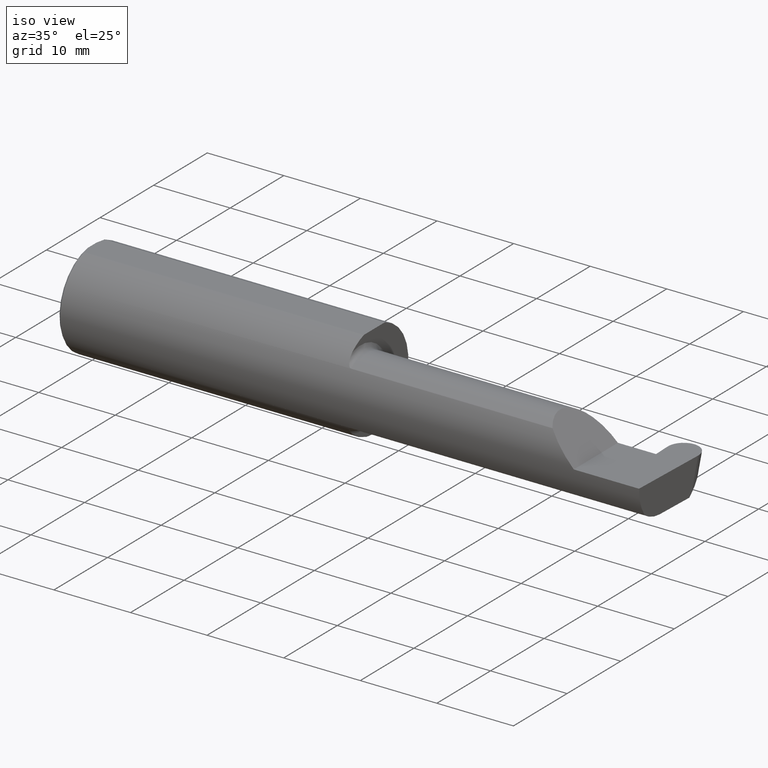
[diagram: clean part render]
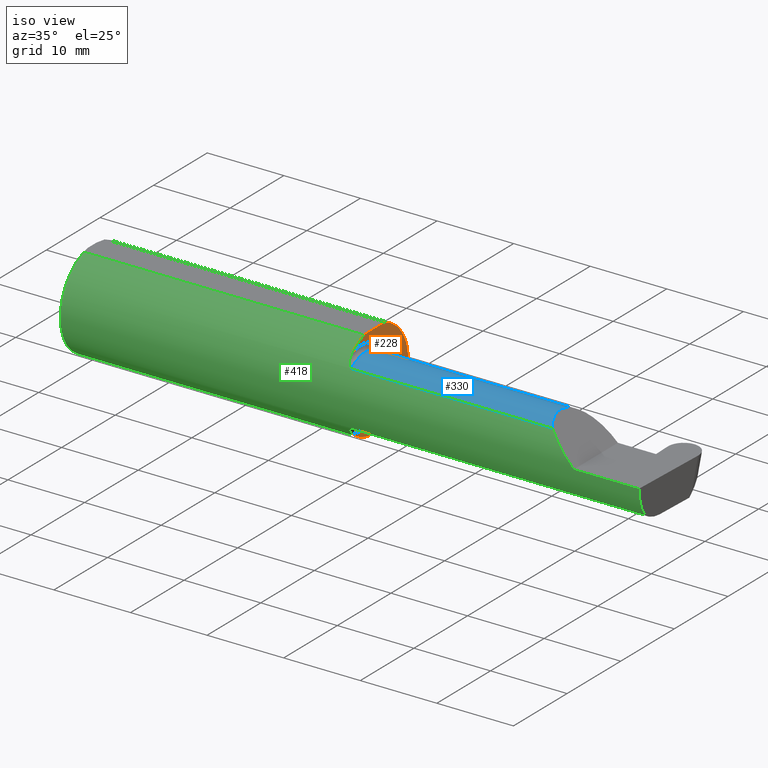
[diagram: same view with three faces highlighted in distinct colors, each labeled with its STEP entity id]
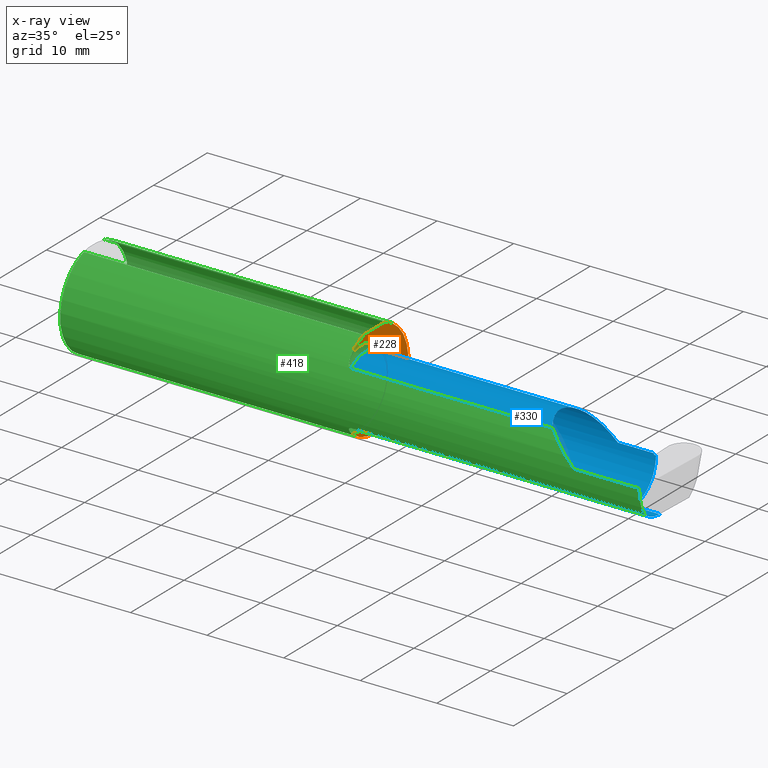
[diagram: x-ray of the same camera — body ghosted, the three highlighted faces saturated]
A machine part, iso view with three faces highlighted in distinct colors.
The next image is the same camera in x-ray (body ghosted, the three faces saturated) — at least one of them is partly hidden behind the body in this view.
Their STEP definitions:

[orange] entity #228 — the highlighted planar face has unit normal (1, 0, 0).
#15 = CARTESIAN_POINT ( 'NONE',  ( 1.450000000000000178, 0.07650098038587520299, 0.2378499999999998671 ) ) ;
#19 = DIRECTION ( 'NONE',  ( 1.000000000000000000, 6.129676535826869480E-17, 0.000000000000000000 ) ) ;
#21 = CARTESIAN_POINT ( 'NONE',  ( 1.450000000000000178, -0.07650098038587527238, 0.2378499999999998671 ) ) ;
#39 = EDGE_CURVE ( 'NONE', #113, #677, #88, .T. ) ;
#56 = AXIS2_PLACEMENT_3D ( 'NONE', #667, #220, #407 ) ;
#71 = EDGE_CURVE ( 'NONE', #565, #113, #449, .T. ) ;
#77 = EDGE_CURVE ( 'NONE', #677, #178, #312, .T. ) ;
#87 = ORIENTED_EDGE ( 'NONE', *, *, #39, .T. ) ;
#88 = CIRCLE ( 'NONE', #627, 0.1999999999999999556 ) ;
#94 = CARTESIAN_POINT ( 'NONE',  ( 1.450000000000000178, -0.1616050818046604332, -0.1905487340154980169 ) ) ;
#108 = DIRECTION ( 'NONE',  ( 0.000000000000000000, -1.000000000000000000, 0.000000000000000000 ) ) ;
#113 = VERTEX_POINT ( 'NONE', #279 ) ;
#144 = DIRECTION ( 'NONE',  ( -6.129676535826869480E-17, 1.000000000000000000, 0.000000000000000000 ) ) ;
#148 = ORIENTED_EDGE ( 'NONE', *, *, #195, .F. ) ;
#175 = ORIENTED_EDGE ( 'NONE', *, *, #71, .T. ) ;
#178 = VERTEX_POINT ( 'NONE', #15 ) ;
#195 = EDGE_CURVE ( 'NONE', #565, #178, #287, .T. ) ;
#220 = DIRECTION ( 'NONE',  ( 1.000000000000000000, 6.129676535826869480E-17, 0.000000000000000000 ) ) ;
#228 = ADVANCED_FACE ( 'NONE', ( #526 ), #239, .T. ) ;
#239 = PLANE ( 'NONE',  #289 ) ;
#279 = CARTESIAN_POINT ( 'NONE',  ( 1.450000000000000178, -0.1616050818046604332, 0.1905487340154980169 ) ) ;
#287 = LINE ( 'NONE', #516, #517 ) ;
#289 = AXIS2_PLACEMENT_3D ( 'NONE', #571, #697, #144 ) ;
#297 = DIRECTION ( 'NONE',  ( -6.129676535826869480E-17, 1.000000000000000000, 0.000000000000000000 ) ) ;
#301 = EDGE_LOOP ( 'NONE', ( #655, #148, #175, #87 ) ) ;
#312 = CIRCLE ( 'NONE', #56, 0.2498499999999999888 ) ;
#384 = CARTESIAN_POINT ( 'NONE',  ( 1.450000000000000178, -0.1008500000000001062, 0.000000000000000000 ) ) ;
#400 = DIRECTION ( 'NONE',  ( 0.000000000000000000, 1.000000000000000000, 0.000000000000000000 ) ) ;
#407 = DIRECTION ( 'NONE',  ( 0.000000000000000000, 1.000000000000000000, 0.000000000000000000 ) ) ;
#449 = CIRCLE ( 'NONE', #605, 0.2498499999999999888 ) ;
#460 = CARTESIAN_POINT ( 'NONE',  ( 1.450000000000000178, 0.000000000000000000, 0.000000000000000000 ) ) ;
#490 = DIRECTION ( 'NONE',  ( -1.000000000000000000, -6.129676535826869480E-17, -0.000000000000000000 ) ) ;
#516 = CARTESIAN_POINT ( 'NONE',  ( 1.450000000000000178, 0.2498499999999997390, 0.2378499999999998671 ) ) ;
#517 = VECTOR ( 'NONE', #297, 39.37007874015748143 ) ;
#526 = FACE_OUTER_BOUND ( 'NONE', #301, .T. ) ;
#565 = VERTEX_POINT ( 'NONE', #21 ) ;
#571 = CARTESIAN_POINT ( 'NONE',  ( 1.450000000000000178, 0.2498499999999998500, 0.000000000000000000 ) ) ;
#605 = AXIS2_PLACEMENT_3D ( 'NONE', #460, #19, #400 ) ;
#627 = AXIS2_PLACEMENT_3D ( 'NONE', #384, #490, #108 ) ;
#655 = ORIENTED_EDGE ( 'NONE', *, *, #77, .T. ) ;
#667 = CARTESIAN_POINT ( 'NONE',  ( 1.450000000000000178, 0.000000000000000000, 0.000000000000000000 ) ) ;
#677 = VERTEX_POINT ( 'NONE', #94 ) ;
#697 = DIRECTION ( 'NONE',  ( 1.000000000000000000, 6.129676535826869480E-17, 0.000000000000000000 ) ) ;

[blue] entity #330 — the highlighted cylindrical surface (partial cylindrical patch) has radius 4.445 mm, axis along (-1, -0, -0).
#7 = CARTESIAN_POINT ( 'NONE',  ( 2.849201506090199398, -0.1008500000000000368, -0.1750000000000000444 ) ) ;
#14 = DIRECTION ( 'NONE',  ( -1.000000000000000000, -0.000000000000000000, -0.000000000000000000 ) ) ;
#20 = VERTEX_POINT ( 'NONE', #7 ) ;
#29 = DIRECTION ( 'NONE',  ( 0.000000000000000000, -1.000000000000000000, 0.000000000000000000 ) ) ;
#40 = CARTESIAN_POINT ( 'NONE',  ( 2.847896006995015661, 0.07056399972053264968, -0.1057442486376091867 ) ) ;
#44 = CARTESIAN_POINT ( 'NONE',  ( 2.158868309999999902, -0.2080850024789289432, 0.1382955322609668858 ) ) ;
#45 = CARTESIAN_POINT ( 'NONE',  ( 2.834942811380418259, 0.07414999999999977165, 0.000000000000000000 ) ) ;
#46 = VERTEX_POINT ( 'NONE', #323 ) ;
#49 = CARTESIAN_POINT ( 'NONE',  ( 1.474999999999999867, -0.1008500000000001062, 0.000000000000000000 ) ) ;
#60 = LINE ( 'NONE', #653, #425 ) ;
#72 = CARTESIAN_POINT ( 'NONE',  ( 2.984481223124517690, -0.2080850024789288599, -0.1382955322609668858 ) ) ;
#74 = CARTESIAN_POINT ( 'NONE',  ( 3.402190948718818664, -0.1008499999999999674, -0.1750000000000000722 ) ) ;
#89 = CARTESIAN_POINT ( 'NONE',  ( 2.834836206108759527, 0.07404339472834127467, -0.006107411922952336175 ) ) ;
#101 =( BOUNDED_CURVE ( )  B_SPLINE_CURVE ( 3, ( #574, #480, #199, #528 ),
 .UNSPECIFIED., .F., .T. ) 
 B_SPLINE_CURVE_WITH_KNOTS ( ( 4, 4 ),
 ( 0.4474640105399725343, 1.107026853503877861 ),
 .UNSPECIFIED. ) 
 CURVE ( )  GEOMETRIC_REPRESENTATION_ITEM ( )  RATIONAL_B_SPLINE_CURVE ( ( 1.000000000000000000, 0.9640754331822831702, 0.9640754331822831702, 1.000000000000000000 ) ) 
 REPRESENTATION_ITEM ( '' )  );
#107 = CARTESIAN_POINT ( 'NONE',  ( 1.474999999999999867, -0.2080850024789288599, -0.1382955322609669135 ) ) ;
#133 = LINE ( 'NONE', #457, #136 ) ;
#134 = VERTEX_POINT ( 'NONE', #502 ) ;
#135 = EDGE_CURVE ( 'NONE', #194, #577, #133, .T. ) ;
#136 = VECTOR ( 'NONE', #284, 39.37007874015748143 ) ;
#151 = ORIENTED_EDGE ( 'NONE', *, *, #639, .T. ) ;
#160 = CARTESIAN_POINT ( 'NONE',  ( 2.511704467739032332, -0.2080850024789289432, 0.1382955322609668858 ) ) ;
#162 = EDGE_CURVE ( 'NONE', #562, #454, #231, .T. ) ;
#185 = CARTESIAN_POINT ( 'NONE',  ( 2.409263745716142768, -0.07597241004310682777, 0.2407362542838554220 ) ) ;
#187 = ORIENTED_EDGE ( 'NONE', *, *, #162, .T. ) ;
#189 = FACE_OUTER_BOUND ( 'NONE', #701, .T. ) ;
#194 = VERTEX_POINT ( 'NONE', #568 ) ;
#197 = VERTEX_POINT ( 'NONE', #363 ) ;
#199 = CARTESIAN_POINT ( 'NONE',  ( 2.986216381845219203, -0.1400387324517229914, -0.1750000000000000999 ) ) ;
#200 = EDGE_CURVE ( 'NONE', #577, #438, #656, .T. ) ;
#227 = ORIENTED_EDGE ( 'NONE', *, *, #135, .F. ) ;
#231 = LINE ( 'NONE', #337, #580 ) ;
#237 = DIRECTION ( 'NONE',  ( -1.000000000000000000, -6.129676535826869480E-17, -0.000000000000000000 ) ) ;
#243 =( BOUNDED_CURVE ( )  B_SPLINE_CURVE ( 3, ( #578, #300, #40, #248 ),
 .UNSPECIFIED., .F., .T. ) 
 B_SPLINE_CURVE_WITH_KNOTS ( ( 4, 4 ),
 ( 3.159045946109732661, 4.694935687864651541 ),
 .UNSPECIFIED. ) 
 CURVE ( )  GEOMETRIC_REPRESENTATION_ITEM ( )  RATIONAL_B_SPLINE_CURVE ( ( 1.000000000000000000, 0.8128932002257884815, 0.8128932002257884815, 1.000000000000000000 ) ) 
 REPRESENTATION_ITEM ( '' )  );
#246 = CARTESIAN_POINT ( 'NONE',  ( 2.834942811380418259, 0.07414999999999977165, 0.000000000000000000 ) ) ;
#248 = CARTESIAN_POINT ( 'NONE',  ( 2.846094497492901887, 0.07404339472834124691, -0.006107411922953763853 ) ) ;
#257 = DIRECTION ( 'NONE',  ( -1.000000000000000000, -6.129676535826869480E-17, -0.000000000000000000 ) ) ;
#280 = EDGE_CURVE ( 'NONE', #562, #46, #101, .T. ) ;
#284 = DIRECTION ( 'NONE',  ( -1.000000000000000000, -6.129676535826869480E-17, -0.000000000000000000 ) ) ;
#300 = CARTESIAN_POINT ( 'NONE',  ( 2.849170060624870882, -0.001152430219572236555, -0.1750000000000001277 ) ) ;
#302 = EDGE_CURVE ( 'NONE', #20, #194, #243, .T. ) ;
#304 = CYLINDRICAL_SURFACE ( 'NONE', #391, 0.1750000000000000444 ) ;
#307 = DIRECTION ( 'NONE',  ( 1.000000000000000000, 6.129676535826869480E-17, 0.000000000000000000 ) ) ;
#323 = CARTESIAN_POINT ( 'NONE',  ( 2.987584882537838826, -0.1008499999999999674, -0.1750000000000000722 ) ) ;
#330 = ADVANCED_FACE ( 'NONE', ( #189 ), #304, .T. ) ;
#337 = CARTESIAN_POINT ( 'NONE',  ( 2.158868309999999902, -0.2080850024789289432, -0.1382955322609668858 ) ) ;
#338 = ORIENTED_EDGE ( 'NONE', *, *, #616, .F. ) ;
#344 = AXIS2_PLACEMENT_3D ( 'NONE', #49, #257, #435 ) ;
#358 = VECTOR ( 'NONE', #307, 39.37007874015748143 ) ;
#362 = ORIENTED_EDGE ( 'NONE', *, *, #200, .F. ) ;
#363 = CARTESIAN_POINT ( 'NONE',  ( 1.474999999999999867, -0.2080850024789289432, 0.1382955322609668858 ) ) ;
#366 = EDGE_CURVE ( 'NONE', #134, #438, #60, .T. ) ;
#371 = ORIENTED_EDGE ( 'NONE', *, *, #366, .T. ) ;
#391 = AXIS2_PLACEMENT_3D ( 'NONE', #642, #631, #29 ) ;
#409 = CARTESIAN_POINT ( 'NONE',  ( 2.511704467739032332, -0.2080850024789289432, 0.1382955322609668858 ) ) ;
#417 = ORIENTED_EDGE ( 'NONE', *, *, #662, .T. ) ;
#425 = VECTOR ( 'NONE', #489, 39.37007874015748143 ) ;
#430 = CARTESIAN_POINT ( 'NONE',  ( 2.482823929317965028, 0.07414999999999997982, 0.1671760706820338838 ) ) ;
#435 = DIRECTION ( 'NONE',  ( 0.000000000000000000, -1.000000000000000000, 0.000000000000000000 ) ) ;
#438 = VERTEX_POINT ( 'NONE', #45 ) ;
#454 = VERTEX_POINT ( 'NONE', #107 ) ;
#455 = EDGE_CURVE ( 'NONE', #197, #454, #651, .T. ) ;
#457 = CARTESIAN_POINT ( 'NONE',  ( 1.450000000000000178, 0.07404339472834139957, -0.006107411922946026986 ) ) ;
#458 = ORIENTED_EDGE ( 'NONE', *, *, #280, .F. ) ;
#462 = VERTEX_POINT ( 'NONE', #160 ) ;
#467 = LINE ( 'NONE', #44, #358 ) ;
#470 = CARTESIAN_POINT ( 'NONE',  ( 2.834907276289865052, 0.07411446490944693932, -0.002035803974317446693 ) ) ;
#474 = VECTOR ( 'NONE', #14, 39.37007874015748143 ) ;
#480 = CARTESIAN_POINT ( 'NONE',  ( 2.985143277913549831, -0.1771157075472507281, -0.1623092683844332140 ) ) ;
#489 = DIRECTION ( 'NONE',  ( 1.000000000000000000, 6.129676535826869480E-17, 0.000000000000000000 ) ) ;
#502 = CARTESIAN_POINT ( 'NONE',  ( 2.650000000000000355, 0.07414999999999999369, 1.898202538678394994E-16 ) ) ;
#528 = CARTESIAN_POINT ( 'NONE',  ( 2.987584882537838826, -0.1008499999999999674, -0.1750000000000000722 ) ) ;
#529 = ORIENTED_EDGE ( 'NONE', *, *, #302, .F. ) ;
#532 = CARTESIAN_POINT ( 'NONE',  ( 2.650000000000000355, 0.07414999999999999369, 1.898202538678394994E-16 ) ) ;
#557 = ORIENTED_EDGE ( 'NONE', *, *, #455, .F. ) ;
#562 = VERTEX_POINT ( 'NONE', #72 ) ;
#567 = LINE ( 'NONE', #74, #474 ) ;
#568 = CARTESIAN_POINT ( 'NONE',  ( 2.846094497492901887, 0.07404339472834124691, -0.006107411922953763853 ) ) ;
#574 = CARTESIAN_POINT ( 'NONE',  ( 2.984481223124517690, -0.2080850024789288599, -0.1382955322609668858 ) ) ;
#577 = VERTEX_POINT ( 'NONE', #666 ) ;
#578 = CARTESIAN_POINT ( 'NONE',  ( 2.849201506090199398, -0.1008500000000000368, -0.1750000000000000444 ) ) ;
#580 = VECTOR ( 'NONE', #237, 39.37007874015748143 ) ;
#616 = EDGE_CURVE ( 'NONE', #46, #20, #567, .T. ) ;
#631 = DIRECTION ( 'NONE',  ( -1.000000000000000000, -6.129676535826869480E-17, -0.000000000000000000 ) ) ;
#635 =( BOUNDED_CURVE ( )  B_SPLINE_CURVE ( 3, ( #409, #185, #430, #532 ),
 .UNSPECIFIED., .F., .T. ) 
 B_SPLINE_CURVE_WITH_KNOTS ( ( 4, 4 ),
 ( 5.623622464215681127, 7.853981633974482790 ),
 .UNSPECIFIED. ) 
 CURVE ( )  GEOMETRIC_REPRESENTATION_ITEM ( )  RATIONAL_B_SPLINE_CURVE ( ( 1.000000000000000000, 0.6266774836123996106, 0.6266774836123996106, 1.000000000000000000 ) ) 
 REPRESENTATION_ITEM ( '' )  );
#639 = EDGE_CURVE ( 'NONE', #462, #134, #635, .T. ) ;
#642 = CARTESIAN_POINT ( 'NONE',  ( 1.450000000000000178, -0.1008500000000001062, 0.000000000000000000 ) ) ;
#651 = CIRCLE ( 'NONE', #344, 0.1750000000000000167 ) ;
#653 = CARTESIAN_POINT ( 'NONE',  ( 1.450000000000000178, 0.07414999999999991043, 1.898202538678394994E-16 ) ) ;
#656 = B_SPLINE_CURVE_WITH_KNOTS ( 'NONE', 3,
 ( #89, #690, #470, #246 ),
 .UNSPECIFIED., .F., .F.,
 ( 4, 4 ),
 ( 0.000000000000000000, 1.000000000000000000 ),
 .UNSPECIFIED. ) ;
#662 = EDGE_CURVE ( 'NONE', #197, #462, #467, .T. ) ;
#666 = CARTESIAN_POINT ( 'NONE',  ( 2.834836206108759527, 0.07404339472834127467, -0.006107411922952336175 ) ) ;
#690 = CARTESIAN_POINT ( 'NONE',  ( 2.834871741199312734, 0.07407892981889410700, -0.004071607948634893386 ) ) ;
#701 = EDGE_LOOP ( 'NONE', ( #187, #557, #417, #151, #371, #362, #227, #529, #338, #458 ) ) ;

[green] entity #418 — the highlighted cylindrical surface (partial cylindrical patch) has radius 6.3462 mm, axis along (-1, -0, -0).
#9 = CARTESIAN_POINT ( 'NONE',  ( 0.000000000000000000, -0.07650098038587520299, 0.2378499999999998671 ) ) ;
#12 = CIRCLE ( 'NONE', #560, 0.2498499999999999888 ) ;
#15 = CARTESIAN_POINT ( 'NONE',  ( 1.450000000000000178, 0.07650098038587520299, 0.2378499999999998671 ) ) ;
#17 = ORIENTED_EDGE ( 'NONE', *, *, #130, .T. ) ;
#19 = DIRECTION ( 'NONE',  ( 1.000000000000000000, 6.129676535826869480E-17, 0.000000000000000000 ) ) ;
#21 = CARTESIAN_POINT ( 'NONE',  ( 1.450000000000000178, -0.07650098038587527238, 0.2378499999999998671 ) ) ;
#24 = CARTESIAN_POINT ( 'NONE',  ( 1.450000000000000178, -0.1616050818046604332, 0.1905487340154980169 ) ) ;
#26 = CARTESIAN_POINT ( 'NONE',  ( 2.600434159100402987, -0.2498499999999999610, 0.04956584089959698708 ) ) ;
#35 = AXIS2_PLACEMENT_3D ( 'NONE', #105, #431, #267 ) ;
#41 = ORIENTED_EDGE ( 'NONE', *, *, #158, .F. ) ;
#42 = LINE ( 'NONE', #422, #378 ) ;
#44 = CARTESIAN_POINT ( 'NONE',  ( 2.158868309999999902, -0.2080850024789289432, 0.1382955322609668858 ) ) ;
#56 = AXIS2_PLACEMENT_3D ( 'NONE', #667, #220, #407 ) ;
#59 = EDGE_CURVE ( 'NONE', #454, #677, #488, .T. ) ;
#61 = CARTESIAN_POINT ( 'NONE',  ( 1.474999999999999867, -0.2080850024789288599, -0.1382955322609669135 ) ) ;
#64 = CARTESIAN_POINT ( 'NONE',  ( 1.474999999999999867, -0.2080850024789289432, 0.1382955322609668858 ) ) ;
#65 = CARTESIAN_POINT ( 'NONE',  ( 2.984481223124517690, -0.2080850024789288599, -0.1382955322609668858 ) ) ;
#68 = CARTESIAN_POINT ( 'NONE',  ( 1.450367168219774294, -0.1713400252854603290, 0.1819601557798505576 ) ) ;
#69 = CARTESIAN_POINT ( 'NONE',  ( 1.456147634408387903, -0.1932733126899460196, -0.1584637047788197695 ) ) ;
#71 = EDGE_CURVE ( 'NONE', #565, #113, #449, .T. ) ;
#72 = CARTESIAN_POINT ( 'NONE',  ( 2.984481223124517690, -0.2080850024789288599, -0.1382955322609668858 ) ) ;
#75 = CARTESIAN_POINT ( 'NONE',  ( 2.650000000000000355, -0.2498499999999999610, 4.286263797015729199E-17 ) ) ;
#77 = EDGE_CURVE ( 'NONE', #677, #178, #312, .T. ) ;
#85 = CARTESIAN_POINT ( 'NONE',  ( 0.009999999999999856226, -0.07650098038587520299, 0.2378499999999998671 ) ) ;
#94 = CARTESIAN_POINT ( 'NONE',  ( 1.450000000000000178, -0.1616050818046604332, -0.1905487340154980169 ) ) ;
#99 = CARTESIAN_POINT ( 'NONE',  ( 2.650000000000000355, -0.2498499999999999610, 4.286263797015729199E-17 ) ) ;
#100 = VERTEX_POINT ( 'NONE', #274 ) ;
#105 = CARTESIAN_POINT ( 'NONE',  ( 0.000000000000000000, 0.000000000000000000, 0.000000000000000000 ) ) ;
#107 = CARTESIAN_POINT ( 'NONE',  ( 1.474999999999999867, -0.2080850024789288599, -0.1382955322609669135 ) ) ;
#109 = EDGE_CURVE ( 'NONE', #443, #462, #590, .T. ) ;
#113 = VERTEX_POINT ( 'NONE', #279 ) ;
#123 = CARTESIAN_POINT ( 'NONE',  ( 2.552984868485332015, -0.2355204011147991883, 0.09701513151466749363 ) ) ;
#128 = CARTESIAN_POINT ( 'NONE',  ( 4.499279347985562423E-32, -0.2498499999999999610, 3.673940397442054938E-16 ) ) ;
#130 = EDGE_CURVE ( 'NONE', #562, #476, #168, .T. ) ;
#142 = DIRECTION ( 'NONE',  ( -1.000000000000000000, -0.000000000000000000, -0.000000000000000000 ) ) ;
#158 = EDGE_CURVE ( 'NONE', #334, #565, #352, .T. ) ;
#160 = CARTESIAN_POINT ( 'NONE',  ( 2.511704467739032332, -0.2080850024789289432, 0.1382955322609668858 ) ) ;
#162 = EDGE_CURVE ( 'NONE', #562, #454, #231, .T. ) ;
#168 =( BOUNDED_CURVE ( )  B_SPLINE_CURVE ( 3, ( #65, #556, #396, #615 ),
 .UNSPECIFIED., .F., .T. ) 
 B_SPLINE_CURVE_WITH_KNOTS ( ( 4, 4 ),
 ( 6.160376845738947615, 6.746954780470606039 ),
 .UNSPECIFIED. ) 
 CURVE ( )  GEOMETRIC_REPRESENTATION_ITEM ( )  RATIONAL_B_SPLINE_CURVE ( ( 1.000000000000000000, 0.9715321379117538569, 0.9715321379117538569, 1.000000000000000000 ) ) 
 REPRESENTATION_ITEM ( '' )  );
#169 = VECTOR ( 'NONE', #507, 39.37007874015748143 ) ;
#170 = CARTESIAN_POINT ( 'NONE',  ( 1.456159563508733878, -0.1933019864360848439, 0.1584298865564832681 ) ) ;
#172 = ORIENTED_EDGE ( 'NONE', *, *, #77, .F. ) ;
#174 = CARTESIAN_POINT ( 'NONE',  ( 1.450000000000000400, -0.1716188362992555061, -0.1820560320165480750 ) ) ;
#176 = CARTESIAN_POINT ( 'NONE',  ( 1.450000000000000622, -0.1665641037263009827, 0.1863429692936361681 ) ) ;
#177 = CARTESIAN_POINT ( 'NONE',  ( 1.451385488563270432, -0.1808287530430325862, -0.1728790649396287349 ) ) ;
#178 = VERTEX_POINT ( 'NONE', #15 ) ;
#193 = CARTESIAN_POINT ( 'NONE',  ( 0.009999999999999856226, 0.000000000000000000, 0.000000000000000000 ) ) ;
#197 = VERTEX_POINT ( 'NONE', #363 ) ;
#204 = CARTESIAN_POINT ( 'NONE',  ( 1.467611663768900065, -0.2061921161193829566, -0.1411075319999378075 ) ) ;
#208 = EDGE_CURVE ( 'NONE', #178, #100, #42, .T. ) ;
#220 = DIRECTION ( 'NONE',  ( 1.000000000000000000, 6.129676535826869480E-17, 0.000000000000000000 ) ) ;
#229 = DIRECTION ( 'NONE',  ( 1.000000000000000000, 0.000000000000000000, 0.000000000000000000 ) ) ;
#231 = LINE ( 'NONE', #337, #580 ) ;
#234 = CIRCLE ( 'NONE', #629, 0.2498499999999999888 ) ;
#237 = DIRECTION ( 'NONE',  ( -1.000000000000000000, -6.129676535826869480E-17, -0.000000000000000000 ) ) ;
#242 = DIRECTION ( 'NONE',  ( 0.000000000000000000, 0.000000000000000000, -1.000000000000000000 ) ) ;
#263 = EDGE_CURVE ( 'NONE', #356, #100, #12, .T. ) ;
#267 = DIRECTION ( 'NONE',  ( 0.000000000000000000, 0.000000000000000000, 1.000000000000000000 ) ) ;
#268 = CARTESIAN_POINT ( 'NONE',  ( 1.473318040126429640, -0.2080850024789288877, -0.1382955322609669135 ) ) ;
#274 = CARTESIAN_POINT ( 'NONE',  ( 0.009999999999999856226, 0.07650098038587520299, 0.2378499999999998671 ) ) ;
#278 = CARTESIAN_POINT ( 'NONE',  ( 1.462616400345755574, -0.2024684335577102701, 0.1464246884265638926 ) ) ;
#279 = CARTESIAN_POINT ( 'NONE',  ( 1.450000000000000178, -0.1616050818046604332, 0.1905487340154980169 ) ) ;
#281 = EDGE_LOOP ( 'NONE', ( #649, #17, #654, #673, #638, #343, #617, #41, #609, #367, #620, #172, #478 ) ) ;
#306 = B_SPLINE_CURVE_WITH_KNOTS ( 'NONE', 3,
 ( #24, #176, #68, #399, #614, #170, #514, #278, #332, #607, #336, #406, #351, #64 ),
 .UNSPECIFIED., .F., .F.,
 ( 4, 2, 2, 2, 2, 2, 4 ),
 ( 0.0003834465838148149201, 0.0008781406165086589211, 0.001372834649202502814, 0.001867528681896346923, 0.002114875698243273098, 0.002238549206416742907, 0.002362222714590213150 ),
 .UNSPECIFIED. ) ;
#307 = DIRECTION ( 'NONE',  ( 1.000000000000000000, 6.129676535826869480E-17, 0.000000000000000000 ) ) ;
#312 = CIRCLE ( 'NONE', #56, 0.2498499999999999888 ) ;
#322 = CARTESIAN_POINT ( 'NONE',  ( 2.985438186182187259, -0.2498499999999999888, 0.000000000000000000 ) ) ;
#325 = CARTESIAN_POINT ( 'NONE',  ( 0.009999999999999856226, 0.000000000000000000, -0.2498499999999999888 ) ) ;
#332 = CARTESIAN_POINT ( 'NONE',  ( 1.464343523383978996, -0.2041337200786082218, 0.1440846171672513221 ) ) ;
#334 = VERTEX_POINT ( 'NONE', #85 ) ;
#336 = CARTESIAN_POINT ( 'NONE',  ( 1.468876997637615256, -0.2068363917296600352, 0.1401586554522230577 ) ) ;
#337 = CARTESIAN_POINT ( 'NONE',  ( 2.158868309999999902, -0.2080850024789289432, -0.1382955322609668858 ) ) ;
#343 = ORIENTED_EDGE ( 'NONE', *, *, #606, .F. ) ;
#351 = CARTESIAN_POINT ( 'NONE',  ( 1.473329956043141875, -0.2080850024798588660, 0.1382955322595675884 ) ) ;
#352 = LINE ( 'NONE', #9, #679 ) ;
#355 = CARTESIAN_POINT ( 'NONE',  ( 1.458176740666625060, -0.1972027065478072771, -0.1535263573771913914 ) ) ;
#356 = VERTEX_POINT ( 'NONE', #325 ) ;
#358 = VECTOR ( 'NONE', #307, 39.37007874015748143 ) ;
#363 = CARTESIAN_POINT ( 'NONE',  ( 1.474999999999999867, -0.2080850024789289432, 0.1382955322609668858 ) ) ;
#367 = ORIENTED_EDGE ( 'NONE', *, *, #263, .T. ) ;
#378 = VECTOR ( 'NONE', #142, 39.37007874015748143 ) ;
#396 = CARTESIAN_POINT ( 'NONE',  ( 2.984572483848591862, -0.2498499999999999610, -0.04956584089959716749 ) ) ;
#399 = CARTESIAN_POINT ( 'NONE',  ( 1.451849548162864600, -0.1805300287242672663, 0.1728462070311780341 ) ) ;
#400 = DIRECTION ( 'NONE',  ( 0.000000000000000000, 1.000000000000000000, 0.000000000000000000 ) ) ;
#402 = DIRECTION ( 'NONE',  ( 0.000000000000000000, 0.000000000000000000, -1.000000000000000000 ) ) ;
#406 = CARTESIAN_POINT ( 'NONE',  ( 1.471718393013768278, -0.2077830475237240626, 0.1387513848711937336 ) ) ;
#407 = DIRECTION ( 'NONE',  ( 0.000000000000000000, 1.000000000000000000, 0.000000000000000000 ) ) ;
#418 = ADVANCED_FACE ( 'NONE', ( #706 ), #657, .T. ) ;
#422 = CARTESIAN_POINT ( 'NONE',  ( 0.000000000000000000, 0.07650098038587520299, 0.2378499999999998671 ) ) ;
#431 = DIRECTION ( 'NONE',  ( -1.000000000000000000, -0.000000000000000000, -0.000000000000000000 ) ) ;
#432 = CARTESIAN_POINT ( 'NONE',  ( 1.464302603425052363, -0.2041009206016212441, -0.1441313430770041482 ) ) ;
#443 = VERTEX_POINT ( 'NONE', #99 ) ;
#449 = CIRCLE ( 'NONE', #605, 0.2498499999999999888 ) ;
#450 = DIRECTION ( 'NONE',  ( 1.000000000000000000, 0.000000000000000000, 0.000000000000000000 ) ) ;
#454 = VERTEX_POINT ( 'NONE', #107 ) ;
#460 = CARTESIAN_POINT ( 'NONE',  ( 1.450000000000000178, 0.000000000000000000, 0.000000000000000000 ) ) ;
#462 = VERTEX_POINT ( 'NONE', #160 ) ;
#467 = LINE ( 'NONE', #44, #358 ) ;
#476 = VERTEX_POINT ( 'NONE', #322 ) ;
#478 = ORIENTED_EDGE ( 'NONE', *, *, #59, .F. ) ;
#485 = CARTESIAN_POINT ( 'NONE',  ( 1.471700027347579320, -0.2077785947292767055, -0.1387580622202826686 ) ) ;
#488 = B_SPLINE_CURVE_WITH_KNOTS ( 'NONE', 3,
 ( #61, #268, #485, #704, #204, #432, #646, #355, #69, #177, #174, #683 ),
 .UNSPECIFIED., .F., .F.,
 ( 4, 2, 2, 2, 2, 4 ),
 ( 1.964491429042083594E-07, 0.0001260981470478302361, 0.0002519998449527562925, 0.0005038032407626203855, 0.001007410032382348572, 0.002014623615621810148 ),
 .UNSPECIFIED. ) ;
#494 = EDGE_CURVE ( 'NONE', #334, #356, #234, .T. ) ;
#501 = LINE ( 'NONE', #128, #169 ) ;
#507 = DIRECTION ( 'NONE',  ( -1.000000000000000000, -0.000000000000000000, -0.000000000000000000 ) ) ;
#508 = CARTESIAN_POINT ( 'NONE',  ( 2.511704467739032332, -0.2080850024789289432, 0.1382955322609668858 ) ) ;
#514 = CARTESIAN_POINT ( 'NONE',  ( 1.458182335268384033, -0.1972192205116130859, 0.1535061413537210651 ) ) ;
#556 = CARTESIAN_POINT ( 'NONE',  ( 2.984244149176539018, -0.2355204011147991328, -0.09701513151466779894 ) ) ;
#560 = AXIS2_PLACEMENT_3D ( 'NONE', #193, #693, #242 ) ;
#562 = VERTEX_POINT ( 'NONE', #72 ) ;
#565 = VERTEX_POINT ( 'NONE', #21 ) ;
#580 = VECTOR ( 'NONE', #237, 39.37007874015748143 ) ;
#590 =( BOUNDED_CURVE ( )  B_SPLINE_CURVE ( 3, ( #75, #26, #123, #508 ),
 .UNSPECIFIED., .F., .T. ) 
 B_SPLINE_CURVE_WITH_KNOTS ( ( 4, 4 ),
 ( 4.712388980384689674, 5.298966915116347209 ),
 .UNSPECIFIED. ) 
 CURVE ( )  GEOMETRIC_REPRESENTATION_ITEM ( )  RATIONAL_B_SPLINE_CURVE ( ( 1.000000000000000000, 0.9715321379117538569, 0.9715321379117538569, 1.000000000000000000 ) ) 
 REPRESENTATION_ITEM ( '' )  );
#594 = EDGE_CURVE ( 'NONE', #476, #443, #501, .T. ) ;
#600 = CARTESIAN_POINT ( 'NONE',  ( 0.009999999999999856226, 0.000000000000000000, 0.000000000000000000 ) ) ;
#605 = AXIS2_PLACEMENT_3D ( 'NONE', #460, #19, #400 ) ;
#606 = EDGE_CURVE ( 'NONE', #113, #197, #306, .T. ) ;
#607 = CARTESIAN_POINT ( 'NONE',  ( 1.467647060162628359, -0.2062109266231180460, 0.1410799729252291967 ) ) ;
#609 = ORIENTED_EDGE ( 'NONE', *, *, #494, .T. ) ;
#614 = CARTESIAN_POINT ( 'NONE',  ( 1.452968662030528879, -0.1849684355203377317, 0.1680843977756267815 ) ) ;
#615 = CARTESIAN_POINT ( 'NONE',  ( 2.985438186182187259, -0.2498499999999999888, 0.000000000000000000 ) ) ;
#617 = ORIENTED_EDGE ( 'NONE', *, *, #71, .F. ) ;
#620 = ORIENTED_EDGE ( 'NONE', *, *, #208, .F. ) ;
#629 = AXIS2_PLACEMENT_3D ( 'NONE', #600, #229, #402 ) ;
#638 = ORIENTED_EDGE ( 'NONE', *, *, #662, .F. ) ;
#646 = CARTESIAN_POINT ( 'NONE',  ( 1.462579853086618975, -0.2024300470081734915, -0.1464774911482685238 ) ) ;
#649 = ORIENTED_EDGE ( 'NONE', *, *, #162, .F. ) ;
#654 = ORIENTED_EDGE ( 'NONE', *, *, #594, .T. ) ;
#657 = CYLINDRICAL_SURFACE ( 'NONE', #35, 0.2498499999999999888 ) ;
#662 = EDGE_CURVE ( 'NONE', #197, #462, #467, .T. ) ;
#667 = CARTESIAN_POINT ( 'NONE',  ( 1.450000000000000178, 0.000000000000000000, 0.000000000000000000 ) ) ;
#673 = ORIENTED_EDGE ( 'NONE', *, *, #109, .T. ) ;
#677 = VERTEX_POINT ( 'NONE', #94 ) ;
#679 = VECTOR ( 'NONE', #450, 39.37007874015748143 ) ;
#683 = CARTESIAN_POINT ( 'NONE',  ( 1.450000000000000178, -0.1616050818046604332, -0.1905487340154980169 ) ) ;
#693 = DIRECTION ( 'NONE',  ( 1.000000000000000000, 0.000000000000000000, 0.000000000000000000 ) ) ;
#704 = CARTESIAN_POINT ( 'NONE',  ( 1.468863362722770294, -0.2068301641248768419, -0.1401678546132361369 ) ) ;
#706 = FACE_OUTER_BOUND ( 'NONE', #281, .T. ) ;